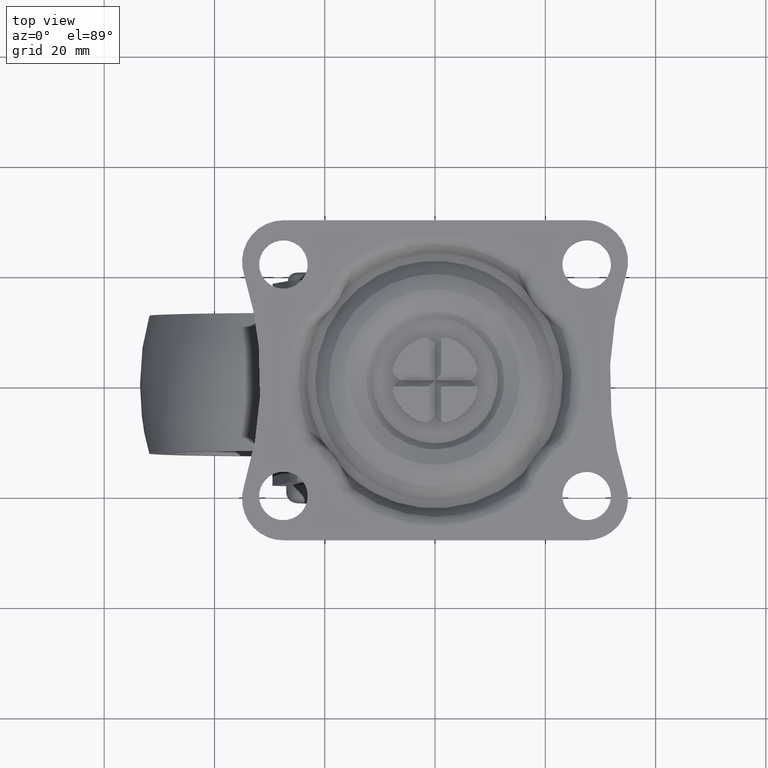
[diagram: clean part render]
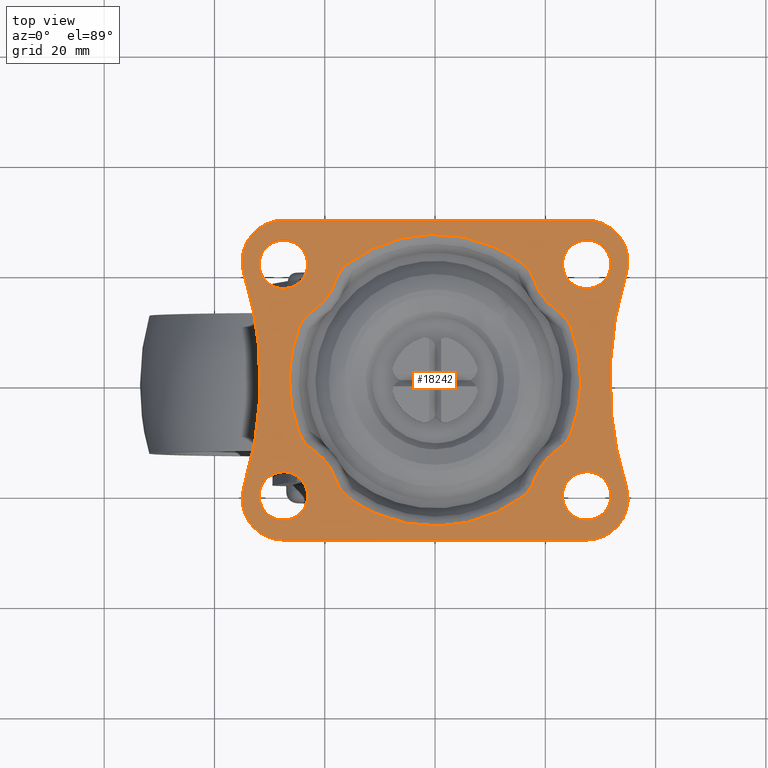
[diagram: same view with one face highlighted and labeled with its STEP entity id]
A machine part, top view. The second image highlights one B-rep face of the part: STEP entity #18242.
In plain terms, the highlighted face is a freeform B-spline surface patch.
Its self-contained STEP definition (entity closure, byte-faithful):
#8642=CARTESIAN_POINT('',(-28.019347460338871,16.630757944672290,-1.597178E-016));
#8643=VERTEX_POINT('',#8642);
#8649=CARTESIAN_POINT('',(-23.099997999999999,21.0,0.0));
#8650=VERTEX_POINT('',#8649);
#8651=CARTESIAN_POINT('',(-28.019347460338874,16.630757944672293,-1.597178E-016));
#8652=CARTESIAN_POINT('',(-27.760583534197082,16.600000000000001,0.0));
#8653=CARTESIAN_POINT('',(-27.499998000000001,16.600000000000001,0.0));
#8654=CARTESIAN_POINT('',(-23.099997999999992,16.600000000000001,0.0));
#8655=CARTESIAN_POINT('',(-23.099997999999999,21.0,0.0));
#8663=(BOUNDED_CURVE()B_SPLINE_CURVE(2,(#8651,#8652,#8653,#8654,#8655),.UNSPECIFIED.,.F.,.U.)B_SPLINE_CURVE_WITH_KNOTS((3,2,3),(0.229562518854702,0.250000000000000,0.500000000000000),.UNSPECIFIED.)CURVE()GEOMETRIC_REPRESENTATION_ITEM()RATIONAL_B_SPLINE_CURVE((0.956026843054313,0.976056001451657,1.0,0.707106781186548,1.0))REPRESENTATION_ITEM(''));
#8664=EDGE_CURVE('',#8643,#8650,#8663,.T.);
#8666=CARTESIAN_POINT('',(-27.231384425862370,25.391793113044940,-2.081668E-017));
#8667=VERTEX_POINT('',#8666);
#8668=CARTESIAN_POINT('',(-23.099997999999999,21.0,0.0));
#8669=CARTESIAN_POINT('',(-23.099997999999989,25.139106694037093,0.0));
#8670=CARTESIAN_POINT('',(-27.231384425862363,25.391793113044947,-2.081668E-017));
#8678=(BOUNDED_CURVE()B_SPLINE_CURVE(2,(#8668,#8669,#8670),.UNSPECIFIED.,.F.,.U.)B_SPLINE_CURVE_WITH_KNOTS((3,3),(0.500000000000000,0.739332962227490),.UNSPECIFIED.)CURVE()GEOMETRIC_REPRESENTATION_ITEM()RATIONAL_B_SPLINE_CURVE((1.0,0.719603993300128,0.976072041642172))REPRESENTATION_ITEM(''));
#8679=EDGE_CURVE('',#8650,#8667,#8678,.T.);
#8753=CARTESIAN_POINT('',(-31.899998000000000,21.0,0.0));
#8754=VERTEX_POINT('',#8753);
#8755=CARTESIAN_POINT('',(-27.231384425862363,25.391793113044940,-2.081668E-017));
#8756=CARTESIAN_POINT('',(-27.365565841301425,25.400000000000002,0.0));
#8757=CARTESIAN_POINT('',(-27.499998000000001,25.399999999999999,0.0));
#8758=CARTESIAN_POINT('',(-31.899997999999993,25.400000000000002,0.0));
#8759=CARTESIAN_POINT('',(-31.899998000000000,21.0,0.0));
#8767=(BOUNDED_CURVE()B_SPLINE_CURVE(2,(#8755,#8756,#8757,#8758,#8759),.UNSPECIFIED.,.F.,.U.)B_SPLINE_CURVE_WITH_KNOTS((3,2,3),(0.739332962227489,0.750000000000000,1.0),.UNSPECIFIED.)CURVE()GEOMETRIC_REPRESENTATION_ITEM()RATIONAL_B_SPLINE_CURVE((0.976072041642171,0.987502787886419,1.0,0.707106781186548,1.0))REPRESENTATION_ITEM(''));
#8768=EDGE_CURVE('',#8667,#8754,#8767,.T.);
#8770=CARTESIAN_POINT('',(-31.899998000000000,21.0,0.0));
#8771=CARTESIAN_POINT('',(-31.899998000000004,17.092031030030089,0.0));
#8772=CARTESIAN_POINT('',(-28.019347460338871,16.630757944672293,-1.597178E-016));
#8780=(BOUNDED_CURVE()B_SPLINE_CURVE(2,(#8770,#8771,#8772),.UNSPECIFIED.,.F.,.U.)B_SPLINE_CURVE_WITH_KNOTS((3,3),(0.0,0.229562518854701),.UNSPECIFIED.)CURVE()GEOMETRIC_REPRESENTATION_ITEM()RATIONAL_B_SPLINE_CURVE((1.0,0.731050779734891,0.956026843054313))REPRESENTATION_ITEM(''));
#8781=EDGE_CURVE('',#8754,#8643,#8780,.T.);
#8828=CARTESIAN_POINT('',(26.980650539661131,16.630757944672290,-1.597178E-016));
#8829=VERTEX_POINT('',#8828);
#8835=CARTESIAN_POINT('',(31.899999999999999,21.0,0.0));
#8836=VERTEX_POINT('',#8835);
#8837=CARTESIAN_POINT('',(26.980650539661124,16.630757944672293,-1.597178E-016));
#8838=CARTESIAN_POINT('',(27.239414465802916,16.600000000000005,0.0));
#8839=CARTESIAN_POINT('',(27.500000000000000,16.600000000000001,0.0));
#8840=CARTESIAN_POINT('',(31.900000000000006,16.600000000000001,0.0));
#8841=CARTESIAN_POINT('',(31.899999999999999,21.0,0.0));
#8849=(BOUNDED_CURVE()B_SPLINE_CURVE(2,(#8837,#8838,#8839,#8840,#8841),.UNSPECIFIED.,.F.,.U.)B_SPLINE_CURVE_WITH_KNOTS((3,2,3),(0.229562518854701,0.250000000000000,0.500000000000000),.UNSPECIFIED.)CURVE()GEOMETRIC_REPRESENTATION_ITEM()RATIONAL_B_SPLINE_CURVE((0.956026843054313,0.976056001451657,1.0,0.707106781186548,1.0))REPRESENTATION_ITEM(''));
#8850=EDGE_CURVE('',#8829,#8836,#8849,.T.);
#8852=CARTESIAN_POINT('',(27.768613574137628,25.391793113044940,-2.081668E-017));
#8853=VERTEX_POINT('',#8852);
#8854=CARTESIAN_POINT('',(31.899999999999999,21.0,0.0));
#8855=CARTESIAN_POINT('',(31.899999999999995,25.139106694037093,0.0));
#8856=CARTESIAN_POINT('',(27.768613574137635,25.391793113044947,-2.081668E-017));
#8864=(BOUNDED_CURVE()B_SPLINE_CURVE(2,(#8854,#8855,#8856),.UNSPECIFIED.,.F.,.U.)B_SPLINE_CURVE_WITH_KNOTS((3,3),(0.500000000000000,0.739332962227490),.UNSPECIFIED.)CURVE()GEOMETRIC_REPRESENTATION_ITEM()RATIONAL_B_SPLINE_CURVE((1.0,0.719603993300128,0.976072041642172))REPRESENTATION_ITEM(''));
#8865=EDGE_CURVE('',#8836,#8853,#8864,.T.);
#8939=CARTESIAN_POINT('',(23.100000000000001,21.0,0.0));
#8940=VERTEX_POINT('',#8939);
#8941=CARTESIAN_POINT('',(27.768613574137632,25.391793113044940,-2.081668E-017));
#8942=CARTESIAN_POINT('',(27.634432158698580,25.400000000000006,0.0));
#8943=CARTESIAN_POINT('',(27.500000000000000,25.399999999999999,0.0));
#8944=CARTESIAN_POINT('',(23.100000000000001,25.400000000000002,0.0));
#8945=CARTESIAN_POINT('',(23.100000000000001,21.0,0.0));
#8953=(BOUNDED_CURVE()B_SPLINE_CURVE(2,(#8941,#8942,#8943,#8944,#8945),.UNSPECIFIED.,.F.,.U.)B_SPLINE_CURVE_WITH_KNOTS((3,2,3),(0.739332962227489,0.750000000000000,1.0),.UNSPECIFIED.)CURVE()GEOMETRIC_REPRESENTATION_ITEM()RATIONAL_B_SPLINE_CURVE((0.976072041642171,0.987502787886419,1.0,0.707106781186548,1.0))REPRESENTATION_ITEM(''));
#8954=EDGE_CURVE('',#8853,#8940,#8953,.T.);
#8956=CARTESIAN_POINT('',(23.100000000000001,21.0,0.0));
#8957=CARTESIAN_POINT('',(23.100000000000005,17.092031030030096,0.0));
#8958=CARTESIAN_POINT('',(26.980650539661127,16.630757944672290,-1.597178E-016));
#8966=(BOUNDED_CURVE()B_SPLINE_CURVE(2,(#8956,#8957,#8958),.UNSPECIFIED.,.F.,.U.)B_SPLINE_CURVE_WITH_KNOTS((3,3),(0.0,0.229562518854701),.UNSPECIFIED.)CURVE()GEOMETRIC_REPRESENTATION_ITEM()RATIONAL_B_SPLINE_CURVE((1.0,0.731050779734891,0.956026843054312))REPRESENTATION_ITEM(''));
#8967=EDGE_CURVE('',#8940,#8829,#8966,.T.);
#9014=CARTESIAN_POINT('',(26.980650539661131,-25.369242055327710,-2.484500E-017));
#9015=VERTEX_POINT('',#9014);
#9021=CARTESIAN_POINT('',(31.899999999999999,-21.0,0.0));
#9022=VERTEX_POINT('',#9021);
#9023=CARTESIAN_POINT('',(26.980650539661131,-25.369242055327714,-2.484500E-017));
#9024=CARTESIAN_POINT('',(27.239414465802913,-25.399999999999995,0.0));
#9025=CARTESIAN_POINT('',(27.500000000000000,-25.399999999999999,0.0));
#9026=CARTESIAN_POINT('',(31.900000000000006,-25.400000000000002,0.0));
#9027=CARTESIAN_POINT('',(31.899999999999999,-21.0,0.0));
#9035=(BOUNDED_CURVE()B_SPLINE_CURVE(2,(#9023,#9024,#9025,#9026,#9027),.UNSPECIFIED.,.F.,.U.)B_SPLINE_CURVE_WITH_KNOTS((3,2,3),(0.229562518854702,0.250000000000000,0.500000000000000),.UNSPECIFIED.)CURVE()GEOMETRIC_REPRESENTATION_ITEM()RATIONAL_B_SPLINE_CURVE((0.956026843054313,0.976056001451657,1.0,0.707106781186548,1.0))REPRESENTATION_ITEM(''));
#9036=EDGE_CURVE('',#9015,#9022,#9035,.T.);
#9038=CARTESIAN_POINT('',(27.768613574137628,-16.608206886955060,-2.081668E-017));
#9039=VERTEX_POINT('',#9038);
#9040=CARTESIAN_POINT('',(31.899999999999999,-21.0,0.0));
#9041=CARTESIAN_POINT('',(31.899999999999995,-16.860893305962907,0.0));
#9042=CARTESIAN_POINT('',(27.768613574137635,-16.608206886955063,-2.081668E-017));
#9050=(BOUNDED_CURVE()B_SPLINE_CURVE(2,(#9040,#9041,#9042),.UNSPECIFIED.,.F.,.U.)B_SPLINE_CURVE_WITH_KNOTS((3,3),(0.500000000000000,0.739332962227490),.UNSPECIFIED.)CURVE()GEOMETRIC_REPRESENTATION_ITEM()RATIONAL_B_SPLINE_CURVE((1.0,0.719603993300128,0.976072041642172))REPRESENTATION_ITEM(''));
#9051=EDGE_CURVE('',#9022,#9039,#9050,.T.);
#9125=CARTESIAN_POINT('',(23.100000000000001,-21.0,0.0));
#9126=VERTEX_POINT('',#9125);
#9127=CARTESIAN_POINT('',(27.768613574137632,-16.608206886955056,-2.081668E-017));
#9128=CARTESIAN_POINT('',(27.634432158698580,-16.600000000000001,0.0));
#9129=CARTESIAN_POINT('',(27.500000000000000,-16.600000000000001,0.0));
#9130=CARTESIAN_POINT('',(23.100000000000001,-16.600000000000001,0.0));
#9131=CARTESIAN_POINT('',(23.100000000000001,-21.0,0.0));
#9139=(BOUNDED_CURVE()B_SPLINE_CURVE(2,(#9127,#9128,#9129,#9130,#9131),.UNSPECIFIED.,.F.,.U.)B_SPLINE_CURVE_WITH_KNOTS((3,2,3),(0.739332962227489,0.750000000000000,1.0),.UNSPECIFIED.)CURVE()GEOMETRIC_REPRESENTATION_ITEM()RATIONAL_B_SPLINE_CURVE((0.976072041642171,0.987502787886419,1.0,0.707106781186548,1.0))REPRESENTATION_ITEM(''));
#9140=EDGE_CURVE('',#9039,#9126,#9139,.T.);
#9142=CARTESIAN_POINT('',(23.100000000000001,-21.0,0.0));
#9143=CARTESIAN_POINT('',(23.099999999999998,-24.907968969969922,0.0));
#9144=CARTESIAN_POINT('',(26.980650539661134,-25.369242055327710,-2.484500E-017));
#9152=(BOUNDED_CURVE()B_SPLINE_CURVE(2,(#9142,#9143,#9144),.UNSPECIFIED.,.F.,.U.)B_SPLINE_CURVE_WITH_KNOTS((3,3),(0.0,0.229562518854702),.UNSPECIFIED.)CURVE()GEOMETRIC_REPRESENTATION_ITEM()RATIONAL_B_SPLINE_CURVE((1.0,0.731050779734891,0.956026843054313))REPRESENTATION_ITEM(''));
#9153=EDGE_CURVE('',#9126,#9015,#9152,.T.);
#9200=CARTESIAN_POINT('',(-28.019351460338871,-25.369242055327710,-2.484500E-017));
#9201=VERTEX_POINT('',#9200);
#9207=CARTESIAN_POINT('',(-23.100002000000000,-21.0,0.0));
#9208=VERTEX_POINT('',#9207);
#9209=CARTESIAN_POINT('',(-28.019351460338864,-25.369242055327710,-2.484500E-017));
#9210=CARTESIAN_POINT('',(-27.760587534197082,-25.399999999999999,0.0));
#9211=CARTESIAN_POINT('',(-27.500001999999999,-25.399999999999999,0.0));
#9212=CARTESIAN_POINT('',(-23.100002000000000,-25.400000000000002,0.0));
#9213=CARTESIAN_POINT('',(-23.100002000000000,-21.0,0.0));
#9221=(BOUNDED_CURVE()B_SPLINE_CURVE(2,(#9209,#9210,#9211,#9212,#9213),.UNSPECIFIED.,.F.,.U.)B_SPLINE_CURVE_WITH_KNOTS((3,2,3),(0.229562518854702,0.250000000000000,0.500000000000000),.UNSPECIFIED.)CURVE()GEOMETRIC_REPRESENTATION_ITEM()RATIONAL_B_SPLINE_CURVE((0.956026843054313,0.976056001451657,1.0,0.707106781186548,1.0))REPRESENTATION_ITEM(''));
#9222=EDGE_CURVE('',#9201,#9208,#9221,.T.);
#9224=CARTESIAN_POINT('',(-27.231388425862360,-16.608206886955060,-2.081668E-017));
#9225=VERTEX_POINT('',#9224);
#9226=CARTESIAN_POINT('',(-23.100002000000000,-21.0,0.0));
#9227=CARTESIAN_POINT('',(-23.100002000000000,-16.860893305962907,0.0));
#9228=CARTESIAN_POINT('',(-27.231388425862367,-16.608206886955063,-2.081668E-017));
#9236=(BOUNDED_CURVE()B_SPLINE_CURVE(2,(#9226,#9227,#9228),.UNSPECIFIED.,.F.,.U.)B_SPLINE_CURVE_WITH_KNOTS((3,3),(0.500000000000000,0.739332962227490),.UNSPECIFIED.)CURVE()GEOMETRIC_REPRESENTATION_ITEM()RATIONAL_B_SPLINE_CURVE((1.0,0.719603993300128,0.976072041642172))REPRESENTATION_ITEM(''));
#9237=EDGE_CURVE('',#9208,#9225,#9236,.T.);
#9311=CARTESIAN_POINT('',(-31.900002000000001,-21.0,0.0));
#9312=VERTEX_POINT('',#9311);
#9313=CARTESIAN_POINT('',(-27.231388425862367,-16.608206886955063,-2.081668E-017));
#9314=CARTESIAN_POINT('',(-27.365569841301422,-16.600000000000005,0.0));
#9315=CARTESIAN_POINT('',(-27.500001999999999,-16.600000000000001,0.0));
#9316=CARTESIAN_POINT('',(-31.900002000000004,-16.600000000000001,0.0));
#9317=CARTESIAN_POINT('',(-31.900002000000001,-21.0,0.0));
#9325=(BOUNDED_CURVE()B_SPLINE_CURVE(2,(#9313,#9314,#9315,#9316,#9317),.UNSPECIFIED.,.F.,.U.)B_SPLINE_CURVE_WITH_KNOTS((3,2,3),(0.739332962227489,0.750000000000000,1.0),.UNSPECIFIED.)CURVE()GEOMETRIC_REPRESENTATION_ITEM()RATIONAL_B_SPLINE_CURVE((0.976072041642171,0.987502787886419,1.0,0.707106781186548,1.0))REPRESENTATION_ITEM(''));
#9326=EDGE_CURVE('',#9225,#9312,#9325,.T.);
#9328=CARTESIAN_POINT('',(-31.900002000000001,-21.0,0.0));
#9329=CARTESIAN_POINT('',(-31.900001999999997,-24.907968969969914,0.0));
#9330=CARTESIAN_POINT('',(-28.019351460338871,-25.369242055327710,-2.484500E-017));
#9338=(BOUNDED_CURVE()B_SPLINE_CURVE(2,(#9328,#9329,#9330),.UNSPECIFIED.,.F.,.U.)B_SPLINE_CURVE_WITH_KNOTS((3,3),(0.0,0.229562518854701),.UNSPECIFIED.)CURVE()GEOMETRIC_REPRESENTATION_ITEM()RATIONAL_B_SPLINE_CURVE((1.0,0.731050779734891,0.956026843054312))REPRESENTATION_ITEM(''));
#9339=EDGE_CURVE('',#9312,#9201,#9338,.T.);
#15102=CARTESIAN_POINT('',(21.884513384504949,-12.846699436964441,0.0));
#15103=VERTEX_POINT('',#15102);
#15104=CARTESIAN_POINT('',(24.559675797691298,-9.816225210299999,0.0));
#15105=VERTEX_POINT('',#15104);
#15106=CARTESIAN_POINT('',(21.884513384504949,-12.846699436964441,0.0));
#15107=CARTESIAN_POINT('',(22.167368846580089,-12.651886177092260,0.0));
#15108=CARTESIAN_POINT('',(22.441664712400659,-12.446860839444209,0.0));
#15109=CARTESIAN_POINT('',(22.834820637567098,-12.117504375460699,0.0));
#15110=CARTESIAN_POINT('',(22.962835789602089,-12.004095787502790,0.0));
#15111=CARTESIAN_POINT('',(23.149609155638402,-11.827720122650851,0.0));
#15112=CARTESIAN_POINT('',(23.210991368748470,-11.767883623670240,0.0));
#15113=CARTESIAN_POINT('',(23.331875700529078,-11.645967567733949,0.0));
#15114=CARTESIAN_POINT('',(23.391478198281479,-11.583776912380920,0.0));
#15115=CARTESIAN_POINT('',(23.682888855944249,-11.268489585433921,0.0));
#15116=CARTESIAN_POINT('',(23.895201665066740,-11.002487458656690,0.0));
#15117=CARTESIAN_POINT('',(24.175710994806060,-10.578368939088801,0.0));
#15118=CARTESIAN_POINT('',(24.262860064283601,-10.432792086944300,0.0));
#15119=CARTESIAN_POINT('',(24.422713668340911,-10.132081471139280,0.0));
#15120=CARTESIAN_POINT('',(24.495432934067459,-9.976957454020740,0.0));
#15121=CARTESIAN_POINT('',(24.559675797691298,-9.816225210299999,0.0));
#15122=B_SPLINE_CURVE_WITH_KNOTS('',3,(#15106,#15107,#15108,#15109,#15110,#15111,#15112,#15113,#15114,#15115,#15116,#15117,#15118,#15119,#15120,#15121),.UNSPECIFIED.,.F.,.U.,(4,2,2,2,2,2,2,4),(0.0,0.250000000000006,0.375000000000009,0.437500000000009,0.500000000000008,0.750000000000005,0.875000000000003,1.0),.UNSPECIFIED.);
#15123=EDGE_CURVE('',#15103,#15105,#15122,.T.);
#15174=CARTESIAN_POINT('',(18.155799285161098,-17.729539328962350,0.0));
#15175=VERTEX_POINT('',#15174);
#15189=CARTESIAN_POINT('',(21.884513384504949,-12.846699436964441,0.0));
#15190=CARTESIAN_POINT('',(19.223277199446915,-14.679593497759454,0.0));
#15191=CARTESIAN_POINT('',(18.155799285161091,-17.729539328962350,0.0));
#15199=(BOUNDED_CURVE()B_SPLINE_CURVE(2,(#15189,#15190,#15191),.UNSPECIFIED.,.F.,.U.)CURVE()GEOMETRIC_REPRESENTATION_ITEM()QUASI_UNIFORM_CURVE()RATIONAL_B_SPLINE_CURVE((1.0,0.950642125812023,1.0))REPRESENTATION_ITEM(''));
#15200=EDGE_CURVE('',#15103,#15175,#15199,.T.);
#15236=CARTESIAN_POINT('',(24.559675797691298,9.816225210299988,0.0));
#15237=VERTEX_POINT('',#15236);
#15267=CARTESIAN_POINT('',(24.559675797691298,9.816225210299990,0.0));
#15268=CARTESIAN_POINT('',(28.483110218123969,0.0,0.0));
#15269=CARTESIAN_POINT('',(24.559675797691298,-9.816225210299995,0.0));
#15277=(BOUNDED_CURVE()B_SPLINE_CURVE(2,(#15267,#15268,#15269),.UNSPECIFIED.,.F.,.U.)CURVE()GEOMETRIC_REPRESENTATION_ITEM()QUASI_UNIFORM_CURVE()RATIONAL_B_SPLINE_CURVE((1.0,0.928576331163574,1.0))REPRESENTATION_ITEM(''));
#15278=EDGE_CURVE('',#15237,#15105,#15277,.T.);
#15353=CARTESIAN_POINT('',(15.936669795881150,-21.108256879337151,0.0));
#15354=VERTEX_POINT('',#15353);
#15368=CARTESIAN_POINT('',(15.936669795881150,-21.108256879337151,0.0));
#15369=CARTESIAN_POINT('',(16.213161136431840,-20.899506757478900,0.0));
#15370=CARTESIAN_POINT('',(16.462199432481540,-20.661973043523972,0.0));
#15371=CARTESIAN_POINT('',(16.746426605780350,-20.336673187702960,0.0));
#15372=CARTESIAN_POINT('',(16.801882611870621,-20.270175325057760,0.0));
#15373=CARTESIAN_POINT('',(16.909207034809711,-20.135701198376989,0.0));
#15374=CARTESIAN_POINT('',(16.961214960321680,-20.067569229450399,0.0));
#15375=CARTESIAN_POINT('',(17.112650873078191,-19.860691463409282,0.0));
#15376=CARTESIAN_POINT('',(17.207503246380149,-19.719470433727640,0.0));
#15377=CARTESIAN_POINT('',(17.655262249958859,-18.999028247651712,0.0));
#15378=CARTESIAN_POINT('',(17.929164631638852,-18.377068807058180,0.0));
#15379=CARTESIAN_POINT('',(18.155799285161098,-17.729539328962350,0.0));
#15380=B_SPLINE_CURVE_WITH_KNOTS('',3,(#15368,#15369,#15370,#15371,#15372,#15373,#15374,#15375,#15376,#15377,#15378,#15379),.UNSPECIFIED.,.F.,.U.,(4,2,2,2,2,4),(0.0,0.250000000000003,0.312500000000002,0.375000000000002,0.500000000000001,1.0),.UNSPECIFIED.);
#15381=EDGE_CURVE('',#15354,#15175,#15380,.T.);
#15470=CARTESIAN_POINT('',(21.884513384504949,12.846699436964419,0.0));
#15471=VERTEX_POINT('',#15470);
#15505=CARTESIAN_POINT('',(24.559675797691298,9.816225210299988,0.0));
#15506=CARTESIAN_POINT('',(24.495542814601450,9.976682538741565,0.0));
#15507=CARTESIAN_POINT('',(24.422735254313771,10.132099005953000,0.0));
#15508=CARTESIAN_POINT('',(24.262083692656020,10.434194152796939,0.0));
#15509=CARTESIAN_POINT('',(24.174227053123509,10.580865488299411,0.0));
#15510=CARTESIAN_POINT('',(24.032342960678069,10.795003810281830,0.0));
#15511=CARTESIAN_POINT('',(23.983360675999069,10.865402581489731,0.0));
#15512=CARTESIAN_POINT('',(23.882177618442611,11.004329836511779,0.0));
#15513=CARTESIAN_POINT('',(23.829862003706591,11.072998436635880,0.0));
#15514=CARTESIAN_POINT('',(23.669327928699602,11.275037662590631,0.0));
#15515=CARTESIAN_POINT('',(23.557543201680801,11.404510693377940,0.0));
#15516=CARTESIAN_POINT('',(22.978075540008270,12.029356905713840,0.0));
#15517=CARTESIAN_POINT('',(22.449269144277459,12.457730775070130,0.0));
#15518=CARTESIAN_POINT('',(21.884513384504949,12.846699436964419,0.0));
#15519=B_SPLINE_CURVE_WITH_KNOTS('',3,(#15505,#15506,#15507,#15508,#15509,#15510,#15511,#15512,#15513,#15514,#15515,#15516,#15517,#15518),.UNSPECIFIED.,.F.,.U.,(4,2,2,2,2,2,4),(0.0,0.124999999999999,0.249999999999999,0.312499999999998,0.374999999999998,0.499999999999999,1.0),.UNSPECIFIED.);
#15520=EDGE_CURVE('',#15237,#15471,#15519,.T.);
#15651=CARTESIAN_POINT('',(-15.936669795881100,-21.108256879337151,0.0));
#15652=VERTEX_POINT('',#15651);
#15666=CARTESIAN_POINT('',(15.936669795881141,-21.108256879337119,0.0));
#15667=CARTESIAN_POINT('',(3.816392E-014,-33.140394143668424,0.0));
#15668=CARTESIAN_POINT('',(-15.936669795881100,-21.108256879337151,0.0));
#15676=(BOUNDED_CURVE()B_SPLINE_CURVE(2,(#15666,#15667,#15668),.UNSPECIFIED.,.F.,.U.)CURVE()GEOMETRIC_REPRESENTATION_ITEM()QUASI_UNIFORM_CURVE()RATIONAL_B_SPLINE_CURVE((1.0,0.798081696669452,1.0))REPRESENTATION_ITEM(''));
#15677=EDGE_CURVE('',#15354,#15652,#15676,.T.);
#15713=CARTESIAN_POINT('',(18.155799285161098,17.729539328962399,0.0));
#15714=VERTEX_POINT('',#15713);
#15744=CARTESIAN_POINT('',(18.155799285161081,17.729539328962399,0.0));
#15745=CARTESIAN_POINT('',(19.223277199446898,14.679593497759464,0.0));
#15746=CARTESIAN_POINT('',(21.884513384504960,12.846699436964430,0.0));
#15754=(BOUNDED_CURVE()B_SPLINE_CURVE(2,(#15744,#15745,#15746),.UNSPECIFIED.,.F.,.U.)CURVE()GEOMETRIC_REPRESENTATION_ITEM()QUASI_UNIFORM_CURVE()RATIONAL_B_SPLINE_CURVE((1.0,0.950642125812022,1.0))REPRESENTATION_ITEM(''));
#15755=EDGE_CURVE('',#15714,#15471,#15754,.T.);
#15937=CARTESIAN_POINT('',(-18.155799285161098,-17.729539328962350,0.0));
#15938=VERTEX_POINT('',#15937);
#15952=CARTESIAN_POINT('',(-18.155799285161098,-17.729539328962350,0.0));
#15953=CARTESIAN_POINT('',(-18.042339998685279,-18.053709668383100,0.0));
#15954=CARTESIAN_POINT('',(-17.916775168212460,-18.372311433023992,0.0));
#15955=CARTESIAN_POINT('',(-17.702564008895489,-18.838316627292560,0.0));
#15956=CARTESIAN_POINT('',(-17.626865414272530,-18.991676040910569,0.0));
#15957=CARTESIAN_POINT('',(-17.505893529318630,-19.218300109498180,0.0));
#15958=CARTESIAN_POINT('',(-17.464331271110520,-19.293271846767549,0.0));
#15959=CARTESIAN_POINT('',(-17.378547801482149,-19.441992197438271,0.0));
#15960=CARTESIAN_POINT('',(-17.334245843230889,-19.515866901137642,0.0));
#15961=CARTESIAN_POINT('',(-17.106816607235402,-19.880012768266930,0.0));
#15962=CARTESIAN_POINT('',(-16.906105942502190,-20.154874714395991,0.0));
#15963=CARTESIAN_POINT('',(-16.570815632290788,-20.537160485239749,0.0));
#15964=CARTESIAN_POINT('',(-16.453323445968721,-20.659566229975681,0.0));
#15965=CARTESIAN_POINT('',(-16.205316001762629,-20.892959367848920,0.0));
#15966=CARTESIAN_POINT('',(-16.074814025357028,-21.003958405903429,0.0));
#15967=CARTESIAN_POINT('',(-15.936669795881100,-21.108256879337151,0.0));
#15968=B_SPLINE_CURVE_WITH_KNOTS('',3,(#15952,#15953,#15954,#15955,#15956,#15957,#15958,#15959,#15960,#15961,#15962,#15963,#15964,#15965,#15966,#15967),.UNSPECIFIED.,.F.,.U.,(4,2,2,2,2,2,2,4),(0.0,0.249999999999997,0.374999999999996,0.437499999999995,0.499999999999995,0.749999999999998,0.874999999999999,1.0),.UNSPECIFIED.);
#15969=EDGE_CURVE('',#15938,#15652,#15968,.T.);
#16070=CARTESIAN_POINT('',(15.936669795881100,21.108256879337151,0.0));
#16071=VERTEX_POINT('',#16070);
#16103=CARTESIAN_POINT('',(18.155799285161098,17.729539328962399,0.0));
#16104=CARTESIAN_POINT('',(18.042277224939419,18.053889022468109,0.0));
#16105=CARTESIAN_POINT('',(17.916608065409640,18.372753257338289,0.0));
#16106=CARTESIAN_POINT('',(17.702092512046470,18.839303041472089,0.0));
#16107=CARTESIAN_POINT('',(17.626267401548130,18.992868818541911,0.0));
#16108=CARTESIAN_POINT('',(17.464646406191051,19.295497711681499,0.0));
#16109=CARTESIAN_POINT('',(17.378542431495159,19.445026239604118,0.0));
#16110=CARTESIAN_POINT('',(17.106224390890439,19.880790915603800,0.0));
#16111=CARTESIAN_POINT('',(16.905876970118818,20.155137314948220,0.0));
#16112=CARTESIAN_POINT('',(16.570913464898631,20.537048172714702,0.0));
#16113=CARTESIAN_POINT('',(16.453493040248730,20.659395057013558,0.0));
#16114=CARTESIAN_POINT('',(16.205508528846089,20.892789741245821,0.0));
#16115=CARTESIAN_POINT('',(16.074958315306940,21.003849467429951,0.0));
#16116=CARTESIAN_POINT('',(15.936669795881100,21.108256879337151,0.0));
#16117=B_SPLINE_CURVE_WITH_KNOTS('',3,(#16103,#16104,#16105,#16106,#16107,#16108,#16109,#16110,#16111,#16112,#16113,#16114,#16115,#16116),.UNSPECIFIED.,.F.,.U.,(4,2,2,2,2,2,4),(0.0,0.250000000000002,0.375000000000002,0.500000000000002,0.750000000000000,0.875000000000000,1.0),.UNSPECIFIED.);
#16118=EDGE_CURVE('',#15714,#16071,#16117,.T.);
#16247=CARTESIAN_POINT('',(-21.884513384504949,-12.846699436964419,0.0));
#16248=VERTEX_POINT('',#16247);
#16262=CARTESIAN_POINT('',(-18.155799285161091,-17.729539328962350,0.0));
#16263=CARTESIAN_POINT('',(-19.223277199446908,-14.679593497759447,0.0));
#16264=CARTESIAN_POINT('',(-21.884513384504960,-12.846699436964430,0.0));
#16272=(BOUNDED_CURVE()B_SPLINE_CURVE(2,(#16262,#16263,#16264),.UNSPECIFIED.,.F.,.U.)CURVE()GEOMETRIC_REPRESENTATION_ITEM()QUASI_UNIFORM_CURVE()RATIONAL_B_SPLINE_CURVE((1.0,0.950642125812022,1.0))REPRESENTATION_ITEM(''));
#16273=EDGE_CURVE('',#15938,#16248,#16272,.T.);
#16309=CARTESIAN_POINT('',(-15.936669795881150,21.108256879337151,0.0));
#16310=VERTEX_POINT('',#16309);
#16340=CARTESIAN_POINT('',(-15.936669795881130,21.108256879337119,0.0));
#16341=CARTESIAN_POINT('',(-1.734723E-014,33.140394143668409,0.0));
#16342=CARTESIAN_POINT('',(15.936669795881100,21.108256879337151,0.0));
#16350=(BOUNDED_CURVE()B_SPLINE_CURVE(2,(#16340,#16341,#16342),.UNSPECIFIED.,.F.,.U.)CURVE()GEOMETRIC_REPRESENTATION_ITEM()QUASI_UNIFORM_CURVE()RATIONAL_B_SPLINE_CURVE((1.0,0.798081696669452,1.0))REPRESENTATION_ITEM(''));
#16351=EDGE_CURVE('',#16310,#16071,#16350,.T.);
#16531=CARTESIAN_POINT('',(-24.559675797691298,-9.816225210299988,0.0));
#16532=VERTEX_POINT('',#16531);
#16546=CARTESIAN_POINT('',(-24.559675797691298,-9.816225210299988,0.0));
#16547=CARTESIAN_POINT('',(-24.495230696513730,-9.977463441673271,0.0));
#16548=CARTESIAN_POINT('',(-24.421839661958899,-10.134065126458941,0.0));
#16549=CARTESIAN_POINT('',(-24.299947014343068,-10.362848726655740,0.0));
#16550=CARTESIAN_POINT('',(-24.257341557393730,-10.438086533648759,0.0));
#16551=CARTESIAN_POINT('',(-24.168383378279021,-10.586619994813230,0.0));
#16552=CARTESIAN_POINT('',(-24.121909838632821,-10.660089123120059,0.0));
#16553=CARTESIAN_POINT('',(-23.882565025947869,-11.019917925421799,0.0));
#16554=CARTESIAN_POINT('',(-23.668732987877480,-11.284951135401800,0.0));
#16555=CARTESIAN_POINT('',(-22.977516592482591,-12.029277097511491,0.0));
#16556=CARTESIAN_POINT('',(-22.449913392064929,-12.457287057240769,0.0));
#16557=CARTESIAN_POINT('',(-21.884513384504949,-12.846699436964419,0.0));
#16558=B_SPLINE_CURVE_WITH_KNOTS('',3,(#16546,#16547,#16548,#16549,#16550,#16551,#16552,#16553,#16554,#16555,#16556,#16557),.UNSPECIFIED.,.F.,.U.,(4,2,2,2,2,4),(0.0,0.125000000000001,0.187500000000002,0.250000000000002,0.500000000000002,1.0),.UNSPECIFIED.);
#16559=EDGE_CURVE('',#16532,#16248,#16558,.T.);
#16648=CARTESIAN_POINT('',(-18.155799285161098,17.729539328962350,0.0));
#16649=VERTEX_POINT('',#16648);
#16681=CARTESIAN_POINT('',(-15.936669795881150,21.108256879337151,0.0));
#16682=CARTESIAN_POINT('',(-16.075248905582480,21.003630072654730,0.0));
#16683=CARTESIAN_POINT('',(-16.206999519308930,20.891593884691019,0.0));
#16684=CARTESIAN_POINT('',(-16.395613761168530,20.713761320098548,0.0));
#16685=CARTESIAN_POINT('',(-16.456977968120860,20.652848376744181,0.0));
#16686=CARTESIAN_POINT('',(-16.576846067247239,20.527918854497720,0.0));
#16687=CARTESIAN_POINT('',(-16.635485499129398,20.463740043898351,0.0));
#16688=CARTESIAN_POINT('',(-16.919593926324708,20.138094365404520,0.0));
#16689=CARTESIAN_POINT('',(-17.118969835721419,19.862021929891881,0.0));
#16690=CARTESIAN_POINT('',(-17.655023723872141,18.999208234977559,0.0));
#16691=CARTESIAN_POINT('',(-17.929005427405801,18.377523677627760,0.0));
#16692=CARTESIAN_POINT('',(-18.155799285161098,17.729539328962350,0.0));
#16693=B_SPLINE_CURVE_WITH_KNOTS('',3,(#16681,#16682,#16683,#16684,#16685,#16686,#16687,#16688,#16689,#16690,#16691,#16692),.UNSPECIFIED.,.F.,.U.,(4,2,2,2,2,4),(0.0,0.124999999999999,0.187499999999999,0.249999999999998,0.499999999999998,1.0),.UNSPECIFIED.);
#16694=EDGE_CURVE('',#16310,#16649,#16693,.T.);
#16825=CARTESIAN_POINT('',(-24.559675797691298,9.816225210299999,0.0));
#16826=VERTEX_POINT('',#16825);
#16840=CARTESIAN_POINT('',(-24.559675797691298,-9.816225210299994,0.0));
#16841=CARTESIAN_POINT('',(-28.483110218123965,-6.938894E-015,0.0));
#16842=CARTESIAN_POINT('',(-24.559675797691298,9.816225210299981,0.0));
#16850=(BOUNDED_CURVE()B_SPLINE_CURVE(2,(#16840,#16841,#16842),.UNSPECIFIED.,.F.,.U.)CURVE()GEOMETRIC_REPRESENTATION_ITEM()QUASI_UNIFORM_CURVE()RATIONAL_B_SPLINE_CURVE((1.0,0.928576331163574,1.0))REPRESENTATION_ITEM(''));
#16851=EDGE_CURVE('',#16532,#16826,#16850,.T.);
#16887=CARTESIAN_POINT('',(-21.884513384504949,12.846699436964441,0.0));
#16888=VERTEX_POINT('',#16887);
#16918=CARTESIAN_POINT('',(-21.884513384504949,12.846699436964441,0.0));
#16919=CARTESIAN_POINT('',(-19.223277199446905,14.679593497759456,0.0));
#16920=CARTESIAN_POINT('',(-18.155799285161091,17.729539328962350,0.0));
#16928=(BOUNDED_CURVE()B_SPLINE_CURVE(2,(#16918,#16919,#16920),.UNSPECIFIED.,.F.,.U.)CURVE()GEOMETRIC_REPRESENTATION_ITEM()QUASI_UNIFORM_CURVE()RATIONAL_B_SPLINE_CURVE((1.0,0.950642125812022,1.0))REPRESENTATION_ITEM(''));
#16929=EDGE_CURVE('',#16888,#16649,#16928,.T.);
#17128=CARTESIAN_POINT('',(-21.884513384504949,12.846699436964441,0.0));
#17129=CARTESIAN_POINT('',(-22.167368846580089,12.651886177092271,0.0));
#17130=CARTESIAN_POINT('',(-22.441664712400652,12.446860839444200,0.0));
#17131=CARTESIAN_POINT('',(-22.834820637567091,12.117504375460699,0.0));
#17132=CARTESIAN_POINT('',(-22.962835789602089,12.004095787502790,0.0));
#17133=CARTESIAN_POINT('',(-23.149609155638402,11.827720122650851,0.0));
#17134=CARTESIAN_POINT('',(-23.210991368748470,11.767883623670240,0.0));
#17135=CARTESIAN_POINT('',(-23.331875700529078,11.645967567733949,0.0));
#17136=CARTESIAN_POINT('',(-23.391478198281469,11.583776912380911,0.0));
#17137=CARTESIAN_POINT('',(-23.682888855944249,11.268489585433921,0.0));
#17138=CARTESIAN_POINT('',(-23.895201665066740,11.002487458656690,0.0));
#17139=CARTESIAN_POINT('',(-24.175710994806060,10.578368939088801,0.0));
#17140=CARTESIAN_POINT('',(-24.262860064283590,10.432792086944300,0.0));
#17141=CARTESIAN_POINT('',(-24.422713668340911,10.132081471139280,0.0));
#17142=CARTESIAN_POINT('',(-24.495432934067459,9.976957454020740,0.0));
#17143=CARTESIAN_POINT('',(-24.559675797691298,9.816225210299999,0.0));
#17144=B_SPLINE_CURVE_WITH_KNOTS('',3,(#17128,#17129,#17130,#17131,#17132,#17133,#17134,#17135,#17136,#17137,#17138,#17139,#17140,#17141,#17142,#17143),.UNSPECIFIED.,.F.,.U.,(4,2,2,2,2,2,2,4),(0.0,0.250000000000007,0.375000000000009,0.437500000000009,0.500000000000009,0.750000000000006,0.875000000000003,1.0),.UNSPECIFIED.);
#17145=EDGE_CURVE('',#16888,#16826,#17144,.T.);
#17575=CARTESIAN_POINT('',(-27.499998000000001,29.0,0.0));
#17576=VERTEX_POINT('',#17575);
#17582=CARTESIAN_POINT('',(27.500000000000000,29.0,0.0));
#17583=VERTEX_POINT('',#17582);
#17584=CARTESIAN_POINT('',(27.500000000000000,29.0,0.0));
#17585=CARTESIAN_POINT('',(-27.499998000000001,29.0,0.0));
#17586=QUASI_UNIFORM_CURVE('',1,(#17584,#17585),.UNSPECIFIED.,.F.,.U.);
#17587=EDGE_CURVE('',#17583,#17576,#17586,.T.);
#17612=CARTESIAN_POINT('',(-34.652890088127293,19.244753943445200,0.0));
#17613=VERTEX_POINT('',#17612);
#17619=CARTESIAN_POINT('',(-27.499998000000001,29.0,0.0));
#17620=CARTESIAN_POINT('',(-31.300835673110900,28.999999999999996,0.0));
#17621=CARTESIAN_POINT('',(-33.548317825544977,25.934842419739340,0.0));
#17622=CARTESIAN_POINT('',(-35.795799977979065,22.869684839478687,0.0));
#17623=CARTESIAN_POINT('',(-34.652890088127293,19.244753943445200,0.0));
#17631=(BOUNDED_CURVE()B_SPLINE_CURVE(2,(#17619,#17620,#17621,#17622,#17623),.UNSPECIFIED.,.F.,.U.)B_SPLINE_CURVE_WITH_KNOTS((3,2,3),(0.0,0.500000000000000,1.0),.UNSPECIFIED.)CURVE()GEOMETRIC_REPRESENTATION_ITEM()RATIONAL_B_SPLINE_CURVE((1.0,0.891995606107988,1.0,0.891995606107988,1.0))REPRESENTATION_ITEM(''));
#17632=EDGE_CURVE('',#17576,#17613,#17631,.T.);
#17652=CARTESIAN_POINT('',(-34.652896106342503,-19.244753882592150,0.0));
#17653=VERTEX_POINT('',#17652);
#17659=CARTESIAN_POINT('',(-34.652896106342517,-19.244753882592150,0.0));
#17660=CARTESIAN_POINT('',(-28.585191197656265,-0.000000918318694,0.0));
#17661=CARTESIAN_POINT('',(-34.652890088127329,19.244753943445168,0.0));
#17669=(BOUNDED_CURVE()B_SPLINE_CURVE(2,(#17659,#17660,#17661),.UNSPECIFIED.,.F.,.U.)CURVE()GEOMETRIC_REPRESENTATION_ITEM()QUASI_UNIFORM_CURVE()RATIONAL_B_SPLINE_CURVE((1.0,0.953719021502563,1.0))REPRESENTATION_ITEM(''));
#17670=EDGE_CURVE('',#17653,#17613,#17669,.T.);
#17692=CARTESIAN_POINT('',(-27.500008544984698,-28.999999999997151,0.0));
#17693=VERTEX_POINT('',#17692);
#17699=CARTESIAN_POINT('',(-34.652896106342503,-19.244753882592150,0.0));
#17700=CARTESIAN_POINT('',(-35.795804716381703,-22.869682845054488,0.0));
#17701=CARTESIAN_POINT('',(-33.548324524931559,-25.934839709819560,0.0));
#17702=CARTESIAN_POINT('',(-31.300844333481422,-28.999996574584628,0.0));
#17703=CARTESIAN_POINT('',(-27.500008544984698,-28.999999999997151,0.0));
#17711=(BOUNDED_CURVE()B_SPLINE_CURVE(2,(#17699,#17700,#17701,#17702,#17703),.UNSPECIFIED.,.F.,.U.)B_SPLINE_CURVE_WITH_KNOTS((3,2,3),(0.0,0.500000000000000,1.0),.UNSPECIFIED.)CURVE()GEOMETRIC_REPRESENTATION_ITEM()RATIONAL_B_SPLINE_CURVE((1.0,0.891995712998666,1.0,0.891995712998666,1.0))REPRESENTATION_ITEM(''));
#17712=EDGE_CURVE('',#17653,#17693,#17711,.T.);
#17724=CARTESIAN_POINT('',(27.500000000000000,-29.0,0.0));
#17725=VERTEX_POINT('',#17724);
#17731=CARTESIAN_POINT('',(-27.500008544984698,-28.999999999997151,0.0));
#17732=CARTESIAN_POINT('',(27.500000000000000,-29.0,0.0));
#17733=QUASI_UNIFORM_CURVE('',1,(#17731,#17732),.UNSPECIFIED.,.F.,.U.);
#17734=EDGE_CURVE('',#17693,#17725,#17733,.T.);
#17755=CARTESIAN_POINT('',(34.652892753445748,-19.244756053615649,0.0));
#17756=VERTEX_POINT('',#17755);
#17762=CARTESIAN_POINT('',(27.500000000000000,-29.0,0.0));
#17763=CARTESIAN_POINT('',(31.300836977907849,-29.0,0.0));
#17764=CARTESIAN_POINT('',(33.548319171384833,-25.934843311894870,0.0));
#17765=CARTESIAN_POINT('',(35.795801364861802,-22.869686623789743,0.0));
#17766=CARTESIAN_POINT('',(34.652892753445762,-19.244756053615649,0.0));
#17774=(BOUNDED_CURVE()B_SPLINE_CURVE(2,(#17762,#17763,#17764,#17765,#17766),.UNSPECIFIED.,.F.,.U.)B_SPLINE_CURVE_WITH_KNOTS((3,2,3),(0.0,0.500000000000000,1.0),.UNSPECIFIED.)CURVE()GEOMETRIC_REPRESENTATION_ITEM()RATIONAL_B_SPLINE_CURVE((1.0,0.891995639447297,1.0,0.891995639447297,1.0))REPRESENTATION_ITEM(''));
#17775=EDGE_CURVE('',#17725,#17756,#17774,.T.);
#17795=CARTESIAN_POINT('',(34.652894155802748,19.244747696124598,0.0));
#17796=VERTEX_POINT('',#17795);
#17802=CARTESIAN_POINT('',(34.652894155802713,19.244747696124641,0.0));
#17803=CARTESIAN_POINT('',(28.585191284280260,-0.000003957670045,0.0));
#17804=CARTESIAN_POINT('',(34.652892753445748,-19.244756053615649,0.0));
#17812=(BOUNDED_CURVE()B_SPLINE_CURVE(2,(#17802,#17803,#17804),.UNSPECIFIED.,.F.,.U.)CURVE()GEOMETRIC_REPRESENTATION_ITEM()QUASI_UNIFORM_CURVE()RATIONAL_B_SPLINE_CURVE((1.0,0.953719015679176,1.0))REPRESENTATION_ITEM(''));
#17813=EDGE_CURVE('',#17796,#17756,#17812,.T.);
#17836=CARTESIAN_POINT('',(34.652894155802748,19.244747696124598,0.0));
#17837=CARTESIAN_POINT('',(35.795806446780453,22.869679593210993,0.0));
#17838=CARTESIAN_POINT('',(33.548323239465333,25.934839689043780,0.0));
#17839=CARTESIAN_POINT('',(31.300840032150191,28.999999784876572,0.0));
#17840=CARTESIAN_POINT('',(27.500000000000000,29.0,0.0));
#17848=(BOUNDED_CURVE()B_SPLINE_CURVE(2,(#17836,#17837,#17838,#17839,#17840),.UNSPECIFIED.,.F.,.U.)B_SPLINE_CURVE_WITH_KNOTS((3,2,3),(0.0,0.500000000000000,1.0),.UNSPECIFIED.)CURVE()GEOMETRIC_REPRESENTATION_ITEM()RATIONAL_B_SPLINE_CURVE((1.0,0.891995525697827,1.0,0.891995525697827,1.0))REPRESENTATION_ITEM(''));
#17849=EDGE_CURVE('',#17796,#17583,#17848,.T.);
#18185=CARTESIAN_POINT('',(-38.496285655470842,31.897099887584751,0.0));
#18186=CARTESIAN_POINT('',(38.496283909570927,31.897099887584751,0.0));
#18187=CARTESIAN_POINT('',(-38.496285655470842,-31.897101443265971,0.0));
#18188=CARTESIAN_POINT('',(38.496283909570927,-31.897101443265971,0.0));
#18189=B_SPLINE_SURFACE_WITH_KNOTS('',1,1,((#18185,#18187),(#18186,#18188)),.UNSPECIFIED.,.F.,.F.,.U.,(2,2),(2,2),(0.0,76.992569565041777),(0.0,63.794201330850733),.UNSPECIFIED.);
#18190=ORIENTED_EDGE('',*,*,#17813,.F.);
#18191=ORIENTED_EDGE('',*,*,#17849,.T.);
#18192=ORIENTED_EDGE('',*,*,#17587,.T.);
#18193=ORIENTED_EDGE('',*,*,#17632,.T.);
#18194=ORIENTED_EDGE('',*,*,#17670,.F.);
#18195=ORIENTED_EDGE('',*,*,#17712,.T.);
#18196=ORIENTED_EDGE('',*,*,#17734,.T.);
#18197=ORIENTED_EDGE('',*,*,#17775,.T.);
#18198=EDGE_LOOP('',(#18190,#18191,#18192,#18193,#18194,#18195,#18196,#18197));
#18199=FACE_OUTER_BOUND('',#18198,.T.);
#18200=ORIENTED_EDGE('',*,*,#16694,.F.);
#18201=ORIENTED_EDGE('',*,*,#16351,.T.);
#18202=ORIENTED_EDGE('',*,*,#16118,.F.);
#18203=ORIENTED_EDGE('',*,*,#15755,.T.);
#18204=ORIENTED_EDGE('',*,*,#15520,.F.);
#18205=ORIENTED_EDGE('',*,*,#15278,.T.);
#18206=ORIENTED_EDGE('',*,*,#15123,.F.);
#18207=ORIENTED_EDGE('',*,*,#15200,.T.);
#18208=ORIENTED_EDGE('',*,*,#15381,.F.);
#18209=ORIENTED_EDGE('',*,*,#15677,.T.);
#18210=ORIENTED_EDGE('',*,*,#15969,.F.);
#18211=ORIENTED_EDGE('',*,*,#16273,.T.);
#18212=ORIENTED_EDGE('',*,*,#16559,.F.);
#18213=ORIENTED_EDGE('',*,*,#16851,.T.);
#18214=ORIENTED_EDGE('',*,*,#17145,.F.);
#18215=ORIENTED_EDGE('',*,*,#16929,.T.);
#18216=EDGE_LOOP('',(#18200,#18201,#18202,#18203,#18204,#18205,#18206,#18207,#18208,#18209,#18210,#18211,#18212,#18213,#18214,#18215));
#18217=FACE_BOUND('',#18216,.T.);
#18218=ORIENTED_EDGE('',*,*,#9237,.F.);
#18219=ORIENTED_EDGE('',*,*,#9222,.F.);
#18220=ORIENTED_EDGE('',*,*,#9339,.F.);
#18221=ORIENTED_EDGE('',*,*,#9326,.F.);
#18222=EDGE_LOOP('',(#18218,#18219,#18220,#18221));
#18223=FACE_BOUND('',#18222,.T.);
#18224=ORIENTED_EDGE('',*,*,#9051,.F.);
#18225=ORIENTED_EDGE('',*,*,#9036,.F.);
#18226=ORIENTED_EDGE('',*,*,#9153,.F.);
#18227=ORIENTED_EDGE('',*,*,#9140,.F.);
#18228=EDGE_LOOP('',(#18224,#18225,#18226,#18227));
#18229=FACE_BOUND('',#18228,.T.);
#18230=ORIENTED_EDGE('',*,*,#8865,.F.);
#18231=ORIENTED_EDGE('',*,*,#8850,.F.);
#18232=ORIENTED_EDGE('',*,*,#8967,.F.);
#18233=ORIENTED_EDGE('',*,*,#8954,.F.);
#18234=EDGE_LOOP('',(#18230,#18231,#18232,#18233));
#18235=FACE_BOUND('',#18234,.T.);
#18236=ORIENTED_EDGE('',*,*,#8679,.F.);
#18237=ORIENTED_EDGE('',*,*,#8664,.F.);
#18238=ORIENTED_EDGE('',*,*,#8781,.F.);
#18239=ORIENTED_EDGE('',*,*,#8768,.F.);
#18240=EDGE_LOOP('',(#18236,#18237,#18238,#18239));
#18241=FACE_BOUND('',#18240,.T.);
#18242=ADVANCED_FACE('',(#18199,#18217,#18223,#18229,#18235,#18241),#18189,.F.);